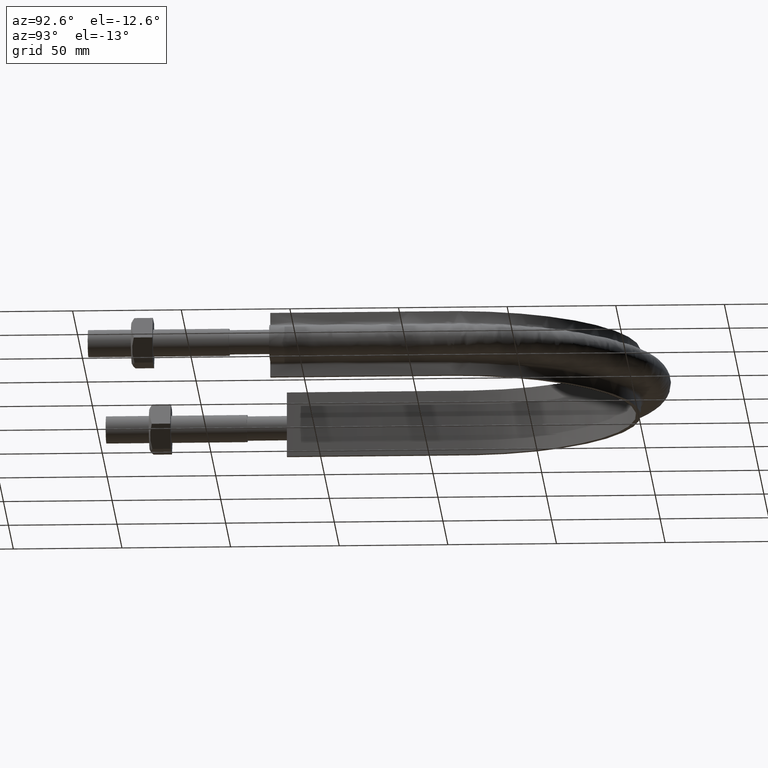
[diagram: clean part render]
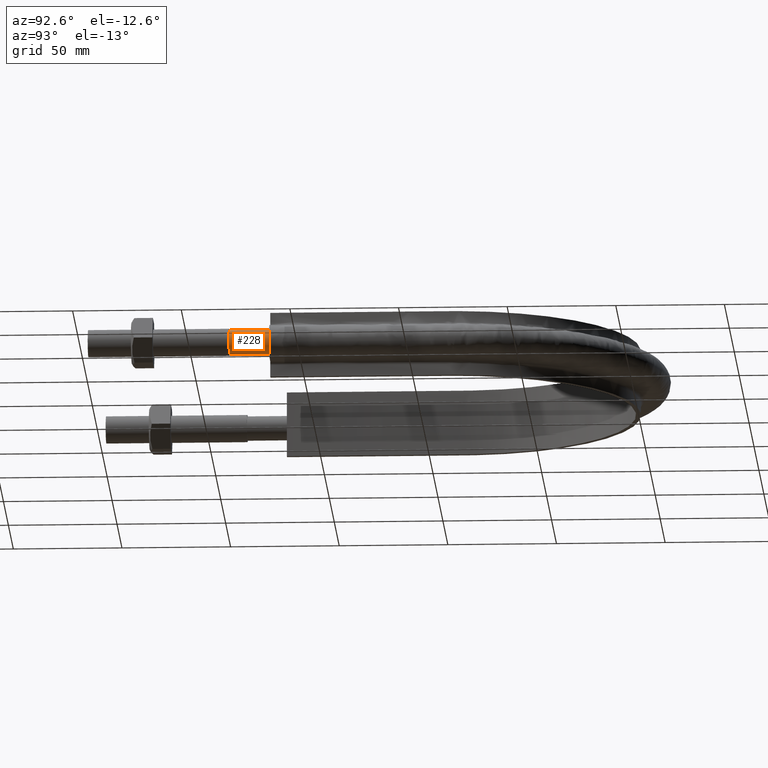
[diagram: same view with one face highlighted and labeled with its STEP entity id]
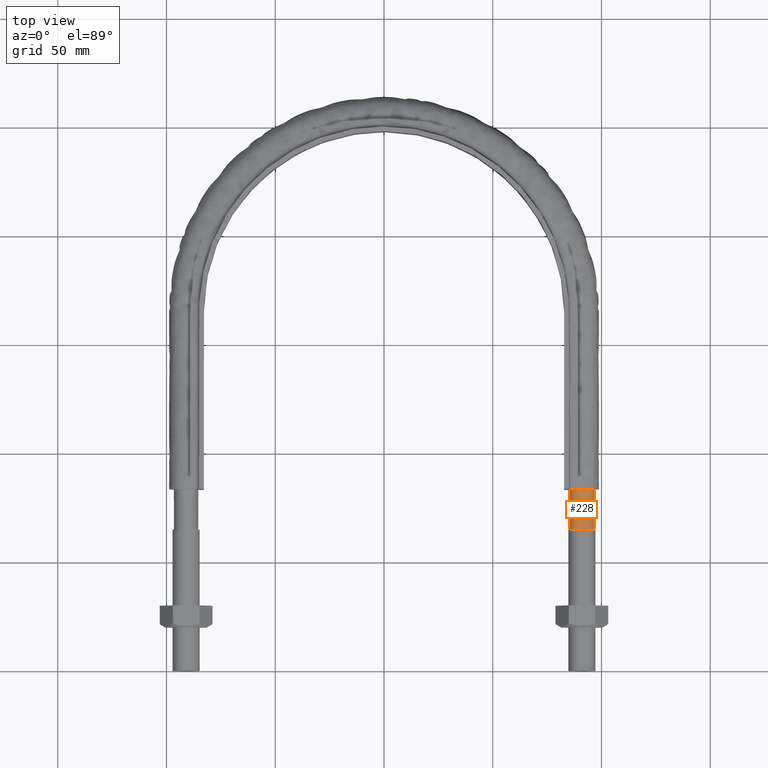
[diagram: same view with one face highlighted and labeled with its STEP entity id]
A machine part, auxiliary view. The second image highlights one B-rep face of the part: STEP entity #228.
A second angle (top view) of the same face is appended — the face is thin or edge-on in the first view.
In plain terms, the highlighted cylindrical surface (bore or boss wall) has radius 5.6 mm, axis along (0, 1, -0).
Its self-contained STEP definition (entity closure, byte-faithful):
#228 = ADVANCED_FACE( '', ( #283, #284 ), #285, .T. );
#283 = FACE_OUTER_BOUND( '', #1098, .T. );
#284 = FACE_OUTER_BOUND( '', #1099, .T. );
#285 = CYLINDRICAL_SURFACE( '', #1100, 5.59999999999999 );
#1098 = EDGE_LOOP( '', ( #1438, #1439, #1440, #1441, #1442, #1443, #1444, #1445 ) );
#1099 = EDGE_LOOP( '', ( #1446 ) );
#1100 = AXIS2_PLACEMENT_3D( '', #1447, #1448, #1449 );
#1438 = ORIENTED_EDGE( '', *, *, #1678, .F. );
#1439 = ORIENTED_EDGE( '', *, *, #1679, .F. );
#1440 = ORIENTED_EDGE( '', *, *, #1680, .F. );
#1441 = ORIENTED_EDGE( '', *, *, #1681, .F. );
#1442 = ORIENTED_EDGE( '', *, *, #1682, .F. );
#1443 = ORIENTED_EDGE( '', *, *, #1683, .F. );
#1444 = ORIENTED_EDGE( '', *, *, #1684, .F. );
#1445 = ORIENTED_EDGE( '', *, *, #1685, .F. );
#1446 = ORIENTED_EDGE( '', *, *, #1686, .T. );
#1447 = CARTESIAN_POINT( '', ( 91.0000000000000, 83.5000000000000, -1.51545036285519E-014 ) );
#1448 = DIRECTION( '', ( 2.44921270764475E-016, 1.00000000000000, -3.06151588455594E-016 ) );
#1449 = DIRECTION( '', ( 1.00000000000000, -2.44921270764475E-016, 0.000000000000000 ) );
#1678 = EDGE_CURVE( '', #1781, #1782, #1783, .T. );
#1679 = EDGE_CURVE( '', #1784, #1781, #1785, .T. );
#1680 = EDGE_CURVE( '', #1786, #1784, #1787, .T. );
#1681 = EDGE_CURVE( '', #1788, #1786, #1789, .T. );
#1682 = EDGE_CURVE( '', #1790, #1788, #1791, .T. );
#1683 = EDGE_CURVE( '', #1792, #1790, #1793, .T. );
#1684 = EDGE_CURVE( '', #1794, #1792, #1795, .T. );
#1685 = EDGE_CURVE( '', #1782, #1794, #1796, .T. );
#1686 = EDGE_CURVE( '', #1797, #1797, #1798, .F. );
#1781 = VERTEX_POINT( '', #2103 );
#1782 = VERTEX_POINT( '', #2104 );
#1783 = B_SPLINE_CURVE_WITH_KNOTS( '', 3, ( #2105, #2106, #2107, #2108 ), .UNSPECIFIED., .F., .F., ( 4, 4 ), ( 0.000000000000000, 1.00000000000000 ), .UNSPECIFIED. );
#1784 = VERTEX_POINT( '', #2109 );
#1785 = B_SPLINE_CURVE_WITH_KNOTS( '', 3, ( #2110, #2111, #2112, #2113 ), .UNSPECIFIED., .F., .F., ( 4, 4 ), ( 0.000000000000000, 1.00000000000000 ), .UNSPECIFIED. );
#1786 = VERTEX_POINT( '', #2114 );
#1787 = B_SPLINE_CURVE_WITH_KNOTS( '', 3, ( #2115, #2116, #2117, #2118 ), .UNSPECIFIED., .F., .F., ( 4, 4 ), ( 0.000000000000000, 1.00000000000000 ), .UNSPECIFIED. );
#1788 = VERTEX_POINT( '', #2119 );
#1789 = B_SPLINE_CURVE_WITH_KNOTS( '', 3, ( #2120, #2121, #2122, #2123 ), .UNSPECIFIED., .F., .F., ( 4, 4 ), ( 0.000000000000000, 1.00000000000000 ), .UNSPECIFIED. );
#1790 = VERTEX_POINT( '', #2124 );
#1791 = B_SPLINE_CURVE_WITH_KNOTS( '', 3, ( #2125, #2126, #2127, #2128 ), .UNSPECIFIED., .F., .F., ( 4, 4 ), ( 0.000000000000000, 1.00000000000000 ), .UNSPECIFIED. );
#1792 = VERTEX_POINT( '', #2129 );
#1793 = B_SPLINE_CURVE_WITH_KNOTS( '', 3, ( #2130, #2131, #2132, #2133 ), .UNSPECIFIED., .F., .F., ( 4, 4 ), ( 0.000000000000000, 1.00000000000000 ), .UNSPECIFIED. );
#1794 = VERTEX_POINT( '', #2134 );
#1795 = B_SPLINE_CURVE_WITH_KNOTS( '', 3, ( #2135, #2136, #2137, #2138 ), .UNSPECIFIED., .F., .F., ( 4, 4 ), ( 0.000000000000000, 1.00000000000000 ), .UNSPECIFIED. );
#1796 = B_SPLINE_CURVE_WITH_KNOTS( '', 3, ( #2139, #2140, #2141, #2142 ), .UNSPECIFIED., .F., .F., ( 4, 4 ), ( 0.000000000000000, 1.00000000000000 ), .UNSPECIFIED. );
#1797 = VERTEX_POINT( '', #2143 );
#1798 = CIRCLE( '', #2144, 5.59999999999999 );
#2103 = CARTESIAN_POINT( '', ( 94.9597979746584, 83.5000000000000, 3.95979797463088 ) );
#2104 = CARTESIAN_POINT( '', ( 96.6000000000000, 83.5000000000000, -1.51545036285519E-014 ) );
#2105 = CARTESIAN_POINT( '', ( 94.9597979746585, 83.5000000000003, 3.95979797463086 ) );
#2106 = CARTESIAN_POINT( '', ( 95.9941125497084, 83.5000000000003, 2.92548339957330 ) );
#2107 = CARTESIAN_POINT( '', ( 96.6000000000103, 83.5000000000003, 1.46274169976572 ) );
#2108 = CARTESIAN_POINT( '', ( 96.5999999999998, 83.5000000000003, -3.92493902395374E-011 ) );
#2109 = CARTESIAN_POINT( '', ( 90.9999999999999, 83.5000000000000, 5.59999999999998 ) );
#2110 = CARTESIAN_POINT( '', ( 90.9999999999999, 83.5000000000003, 5.59999999999999 ) );
#2111 = CARTESIAN_POINT( '', ( 92.4627416998033, 83.5000000000003, 5.60000000000002 ) );
#2112 = CARTESIAN_POINT( '', ( 93.9254833996068, 83.5000000000003, 4.99411254969010 ) );
#2113 = CARTESIAN_POINT( '', ( 94.9597979746584, 83.5000000000003, 3.95979797463099 ) );
#2114 = CARTESIAN_POINT( '', ( 87.0402020253551, 83.5000000000000, 3.95979797464437 ) );
#2115 = CARTESIAN_POINT( '', ( 87.0402020253789, 83.5000000000003, 3.95979797466821 ) );
#2116 = CARTESIAN_POINT( '', ( 88.0745166004340, 83.5000000000003, 4.99411254971025 ) );
#2117 = CARTESIAN_POINT( '', ( 89.5372583002356, 83.5000000000003, 5.60000000000889 ) );
#2118 = CARTESIAN_POINT( '', ( 91.0000000000360, 83.5000000000003, 5.59999999999961 ) );
#2119 = CARTESIAN_POINT( '', ( 85.4000000000000, 83.5000000000003, -6.57793329442030E-014 ) );
#2120 = CARTESIAN_POINT( '', ( 85.4000000000000, 83.5000000000003, -1.08420217248550E-016 ) );
#2121 = CARTESIAN_POINT( '', ( 85.4000000000000, 83.5000000000003, 1.46274169979682 ) );
#2122 = CARTESIAN_POINT( '', ( 86.0058874503045, 83.5000000000003, 2.92548339959365 ) );
#2123 = CARTESIAN_POINT( '', ( 87.0402020253551, 83.5000000000003, 3.95979797464439 ) );
#2124 = CARTESIAN_POINT( '', ( 87.0402020253615, 83.5000000000000, -3.95979797465083 ) );
#2125 = CARTESIAN_POINT( '', ( 87.0402020253615, 83.5000000000003, -3.95979797465081 ) );
#2126 = CARTESIAN_POINT( '', ( 86.0058874503070, 83.5000000000003, -2.92548339959970 ) );
#2127 = CARTESIAN_POINT( '', ( 85.4000000000006, 83.5000000000003, -1.46274169980130 ) );
#2128 = CARTESIAN_POINT( '', ( 85.3999999999999, 83.5000000000003, -3.14136737455950E-012 ) );
#2129 = CARTESIAN_POINT( '', ( 91.0000000000002, 83.5000000000000, -5.60000000000001 ) );
#2130 = CARTESIAN_POINT( '', ( 91.0000000000002, 83.5000000000003, -5.59999999999999 ) );
#2131 = CARTESIAN_POINT( '', ( 89.5372583002061, 83.5000000000003, -5.60000000000004 ) );
#2132 = CARTESIAN_POINT( '', ( 88.0745166004121, 83.5000000000003, -4.99411254969791 ) );
#2133 = CARTESIAN_POINT( '', ( 87.0402020253617, 83.5000000000003, -3.95979797465094 ) );
#2134 = CARTESIAN_POINT( '', ( 94.9597979746457, 83.5000000000000, -3.95979797464368 ) );
#2135 = CARTESIAN_POINT( '', ( 94.9597979746456, 83.5000000000002, -3.95979797464374 ) );
#2136 = CARTESIAN_POINT( '', ( 93.9254833995951, 83.5000000000002, -4.99411254969479 ) );
#2137 = CARTESIAN_POINT( '', ( 92.4627416997984, 83.5000000000002, -5.59999999999958 ) );
#2138 = CARTESIAN_POINT( '', ( 91.0000000000016, 83.5000000000002, -5.60000000000000 ) );
#2139 = CARTESIAN_POINT( '', ( 96.6000000000000, 83.5000000000002, -1.81387953856294E-011 ) );
#2140 = CARTESIAN_POINT( '', ( 96.5999999999950, 83.5000000000002, -1.46274169981296 ) );
#2141 = CARTESIAN_POINT( '', ( 95.9941125496867, 83.5000000000002, -2.92548339960903 ) );
#2142 = CARTESIAN_POINT( '', ( 94.9597979746316, 83.5000000000002, -3.95979797465745 ) );
#2143 = CARTESIAN_POINT( '', ( 91.0000000000000, 65.0000000000000, -5.60000000000000 ) );
#2144 = AXIS2_PLACEMENT_3D( '', #2400, #2401, #2402 );
#2400 = CARTESIAN_POINT( '', ( 91.0000000000000, 65.0000000000000, -9.49069924212341E-015 ) );
#2401 = DIRECTION( '', ( -2.44921270764475E-016, -1.00000000000000, 3.06151588455594E-016 ) );
#2402 = DIRECTION( '', ( 0.000000000000000, -3.06151588455594E-016, -1.00000000000000 ) );